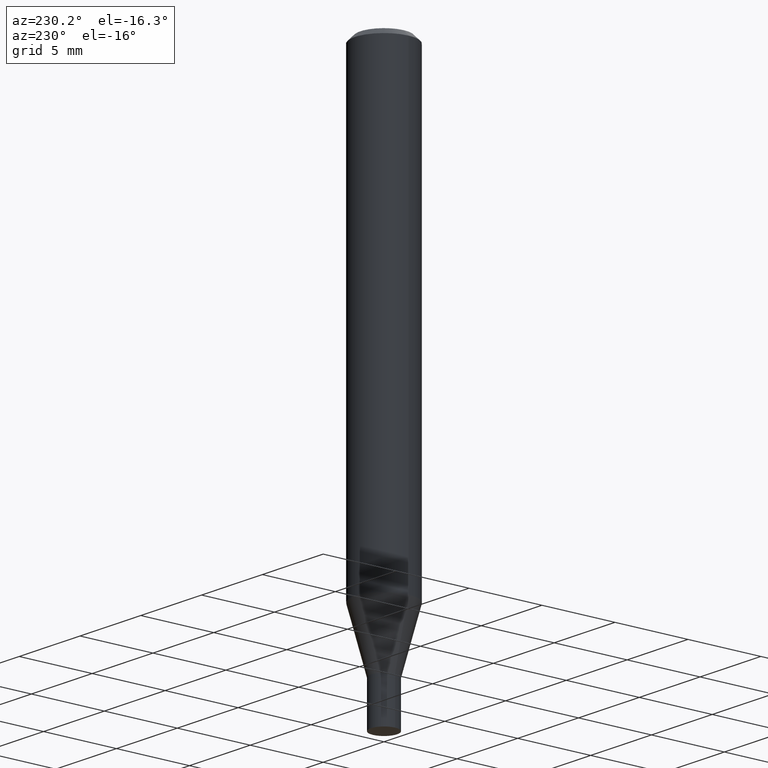
[diagram: clean part render]
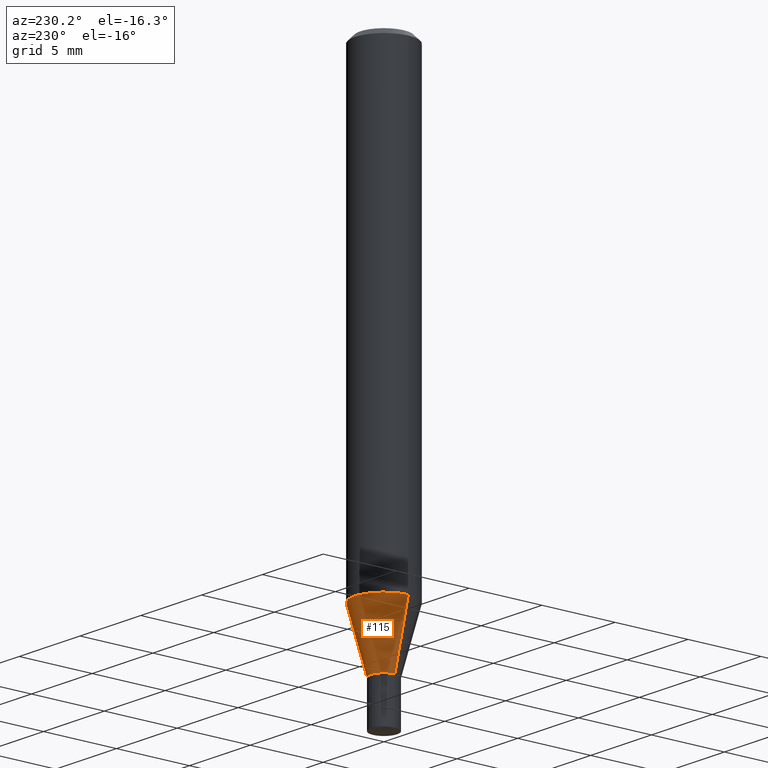
[diagram: same view with one face highlighted and labeled with its STEP entity id]
A machine part, auxiliary view. The second image highlights one B-rep face of the part: STEP entity #115.
In plain terms, the highlighted conical surface has half-angle 15 deg.
Its self-contained STEP definition (entity closure, byte-faithful):
#21 = CIRCLE ( 'NONE', #433, 0.07875000000000000056 ) ;
#33 = CARTESIAN_POINT ( 'NONE',  ( -0.07875000000000001443, -3.708442065562388790E-15, -1.222402200032267405 ) ) ;
#37 = DIRECTION ( 'NONE',  ( 0.2588190451025209615, 1.565188264969624926E-15, 0.9659258262890682012 ) ) ;
#42 = CARTESIAN_POINT ( 'NONE',  ( 0.03544999999999992601, -5.079756199882890666E-15, -1.384000000000000119 ) ) ;
#70 = AXIS2_PLACEMENT_3D ( 'NONE', #142, #356, #283 ) ;
#71 = FACE_OUTER_BOUND ( 'NONE', #150, .T. ) ;
#81 = DIRECTION ( 'NONE',  ( 1.000000000000000000, -6.982962677686269077E-15, 0.000000000000000000 ) ) ;
#115 = ADVANCED_FACE ( 'NONE', ( #71 ), #388, .T. ) ;
#132 = VERTEX_POINT ( 'NONE', #33 ) ;
#142 = CARTESIAN_POINT ( 'NONE',  ( 3.384528827760229323E-29, -4.832210172958913572E-15, -1.384000000000000119 ) ) ;
#146 = DIRECTION ( 'NONE',  ( 1.000000000000000000, -6.982962677686261977E-15, 0.000000000000000000 ) ) ;
#150 = EDGE_LOOP ( 'NONE', ( #211, #350, #297, #235 ) ) ;
#161 = VERTEX_POINT ( 'NONE', #200 ) ;
#164 = VECTOR ( 'NONE', #37, 39.37007874015748143 ) ;
#183 = DIRECTION ( 'NONE',  ( -2.445468806185136597E-29, 3.491481338843145583E-15, 1.000000000000000000 ) ) ;
#198 = CARTESIAN_POINT ( 'NONE',  ( 0.07875000000000001443, -4.817902780841260937E-15, -1.222402200032267405 ) ) ;
#200 = CARTESIAN_POINT ( 'NONE',  ( 0.03544999999999992601, -5.079756199882890666E-15, -1.384000000000000119 ) ) ;
#211 = ORIENTED_EDGE ( 'NONE', *, *, #449, .T. ) ;
#215 = LINE ( 'NONE', #42, #164 ) ;
#232 = VECTOR ( 'NONE', #432, 39.37007874015748143 ) ;
#235 = ORIENTED_EDGE ( 'NONE', *, *, #323, .F. ) ;
#237 = VERTEX_POINT ( 'NONE', #198 ) ;
#251 = DIRECTION ( 'NONE',  ( -2.445468806185136597E-29, 3.491481338843145583E-15, 1.000000000000000000 ) ) ;
#266 = LINE ( 'NONE', #289, #232 ) ;
#283 = DIRECTION ( 'NONE',  ( 1.000000000000000000, -6.982962677686269077E-15, 0.000000000000000000 ) ) ;
#289 = CARTESIAN_POINT ( 'NONE',  ( -0.03544999999999992601, -4.580322773131958187E-15, -1.384000000000000119 ) ) ;
#297 = ORIENTED_EDGE ( 'NONE', *, *, #337, .F. ) ;
#307 = VERTEX_POINT ( 'NONE', #431 ) ;
#323 = EDGE_CURVE ( 'NONE', #161, #237, #215, .T. ) ;
#330 = CARTESIAN_POINT ( 'NONE',  ( 2.989346448790993832E-29, -4.267994469973468380E-15, -1.222402200032267405 ) ) ;
#337 = EDGE_CURVE ( 'NONE', #237, #132, #21, .T. ) ;
#350 = ORIENTED_EDGE ( 'NONE', *, *, #402, .T. ) ;
#356 = DIRECTION ( 'NONE',  ( -2.445468806185136597E-29, 3.491481338843145583E-15, 1.000000000000000000 ) ) ;
#388 = CONICAL_SURFACE ( 'NONE', #70, 0.03544999999999992601, 0.2617993877991496299 ) ;
#402 = EDGE_CURVE ( 'NONE', #307, #132, #266, .T. ) ;
#415 = CIRCLE ( 'NONE', #459, 0.03544999999999992601 ) ;
#431 = CARTESIAN_POINT ( 'NONE',  ( -0.03544999999999992601, -4.144382419347173488E-15, -1.384000000000000119 ) ) ;
#432 = DIRECTION ( 'NONE',  ( -0.2588190451025209615, 5.211531920934547097E-15, 0.9659258262890682012 ) ) ;
#433 = AXIS2_PLACEMENT_3D ( 'NONE', #330, #183, #146 ) ;
#434 = CARTESIAN_POINT ( 'NONE',  ( 3.384528827760229323E-29, -4.832210172958913572E-15, -1.384000000000000119 ) ) ;
#449 = EDGE_CURVE ( 'NONE', #161, #307, #415, .T. ) ;
#459 = AXIS2_PLACEMENT_3D ( 'NONE', #434, #251, #81 ) ;